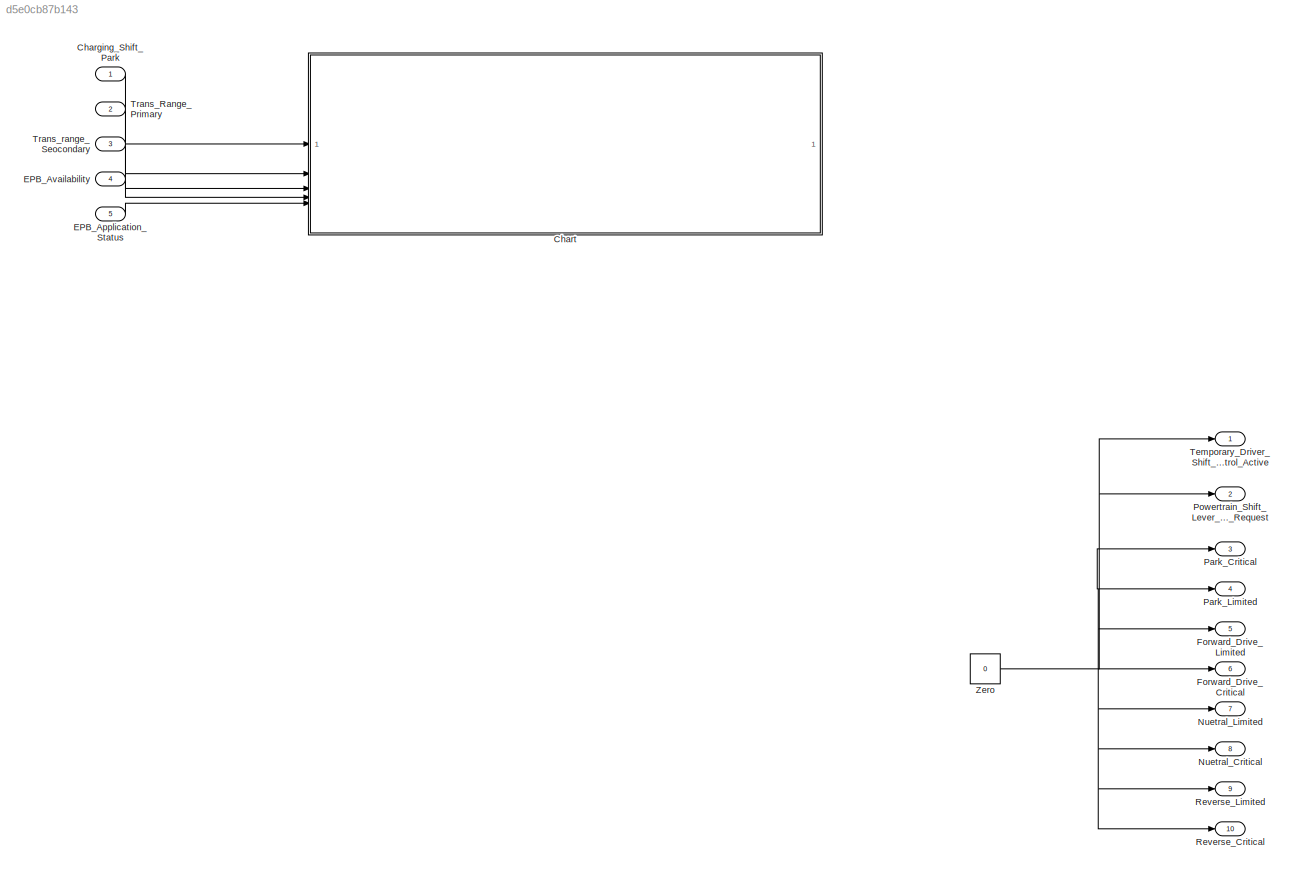
MODEL slx_d5e0cb87b143
KIND model
CONFIG AbsTol = auto
CONFIG EnableMultiTasking = off
CONFIG FixedStep = auto
CONFIG MaxStep = auto
CONFIG MinStep = auto
CONFIG RelTol = 1e-3
CONFIG SampleTimeConstraint = Unconstrained
CONFIG SolverName = VariableStepAuto
CONFIG StartTime = 0.0
CONFIG StopTime = 10.0
BLOCK [Inport] Charging_Shift_Park
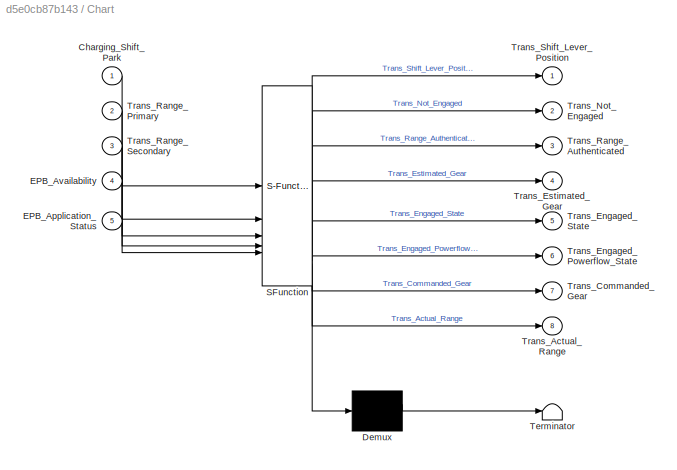
BLOCK [SubSystem] Chart
  ErrorFcn = Stateflow.Translate.translate
  PermitHierarchicalResolution = ExplicitOnly
  SFBlockType = Chart
  TreatAsAtomicUnit = on
BLOCK [Demux] Chart/ Demux 
  Outputs = 1
BLOCK [S-Function] Chart/ SFunction 
  EnableBusSupport = on
  FunctionName = sf_sfun
  PortCounts = [5 9]
  SFcnIsStateOwnerBlock = off
  SFunctionDeploymentMode = off
  Tag = Stateflow S-Function 3
BLOCK [Terminator] Chart/ Terminator 
BLOCK [Inport] Chart/Charging_Shift_Park
BLOCK [Inport] Chart/EPB_Application_Status
  Port = 5
BLOCK [Inport] Chart/EPB_Availability
  Port = 4
BLOCK [Outport] Chart/Trans_Actual_Range
  Port = 8
BLOCK [Outport] Chart/Trans_Commanded_Gear
  Port = 7
BLOCK [Outport] Chart/Trans_Engaged_Powerflow_State
  Port = 6
BLOCK [Outport] Chart/Trans_Engaged_State
  Port = 5
BLOCK [Outport] Chart/Trans_Estimated_Gear
  Port = 4
BLOCK [Outport] Chart/Trans_Not_Engaged
  Port = 2
BLOCK [Outport] Chart/Trans_Range_Authenticated
  Port = 3
BLOCK [Inport] Chart/Trans_Range_Primary
  Port = 2
BLOCK [Inport] Chart/Trans_Range_Secondary
  Port = 3
BLOCK [Outport] Chart/Trans_Shift_Lever_Position
BLOCK [Inport] EPB_Application_Status
  Port = 5
BLOCK [Inport] EPB_Availability
  Port = 4
BLOCK [Outport] Forward_Drive_Critical
  Port = 6
BLOCK [Outport] Forward_Drive_Limited
  Port = 5
BLOCK [Outport] Nuetral_Critical
  Port = 8
BLOCK [Outport] Nuetral_Limited
  Port = 7
BLOCK [Outport] Park_Critical
  Port = 3
BLOCK [Outport] Park_Limited
  Port = 4
BLOCK [Outport] Powertrain_Shift_Lever_Lock_Request
  Port = 2
BLOCK [Outport] Reverse_Critical
  Port = 10
BLOCK [Outport] Reverse_Limited
  Port = 9
BLOCK [Outport] Temporary_Driver_Shift_Control_Active
BLOCK [Inport] Trans_Range_Primary
  Port = 2
BLOCK [Inport] Trans_range_Seocondary
  Port = 3
BLOCK [Constant] Zero
  OutDataTypeStr = Inherit: Inherit via back propagation
  Value = 0
LINE Charging_Shift_Park:1 -> Chart:1
LINE EPB_Application_Status:1 -> Chart:5
LINE EPB_Availability:1 -> Chart:4
LINE Trans_Range_Primary:1 -> Chart:2
LINE Trans_range_Seocondary:1 -> Chart:3
NET Zero:1 -> Forward_Drive_Critical:1, Forward_Drive_Limited:1, Nuetral_Critical:1, Nuetral_Limited:1, Park_Critical:1, Park_Limited:1, Powertrain_Shift_Lever_Lock_Request:1, Reverse_Critical:1, Reverse_Limited:1, Temporary_Driver_Shift_Control_Active:1
note: NET lines group one-source signal fan-out (src -> all destinations, sorted); 1:1 wires keep LINE
CHART Chart states=4 transitions=19
  STATE_LABEL 'Nuetral\nentry:\nTrans_Actual_Range == Nuetral_Position;\nTrans_Range_Authenticated == Nuetral;\nTrans_Shift_Lever_Position == Nuetral_Range;\nTrans_Estimated_Gear == Nuetral_Gear;\nTrans_Commanded_Gear == Nuetral_Gear;\nTrans_Engaged_State == Trans_Not_Engaged;\nTrans_Engaged_Powerflow_State == No_Powerflow;\n'
  STATE_LABEL 'Park\nentry:\nTrans_Range_Authenticated == Park;\nTrans_Shift_Lever_Position == Park_Range;\nTrans_Estimated_Gear == Park_Gear;\nTrans_Commanded_Gear == Park_Gear;\nTrans_Engaged_State == Trans_Not_Engaged;\nTrans_Engaged_Powerflow_State == No_Powerflow;\n'
  STATE_LABEL '% Actual_Range'
  STATE_LABEL '[EPB_Application_Status == Engaged]'
  STATE_LABEL '{Trans_Actual_Range == Nuetral_Position}'
  STATE_LABEL '{Trans_Actual_Range == Park_Position}'
  STATE_LABEL 'Drive\nentry:\nTrans_Actual_Range == First_Drive_Position;\nTrans_Range_Authenticated == Drive;\nTrans_Shift_Lever_Position == Forward_Range;\nTrans_Estimated_Gear == CVT_Forward_Gear;\nTrans_Commanded_Gear == CVT_Forward_Gear;\nTrans_Engaged_State == Trans_Engaged_Forward;\nTrans_Engaged_Powerflow_State == Forward_Engaged;\n'
  STATE_LABEL 'Reverse\nentry:\nTrans_Actual_Range == Reverse_Position;\nTrans_Range_Authenticated == Reverse;\nTrans_Shift_Lever_Position == Reverse_Range;\nTrans_Estimated_Gear == Reverse_Gear;\nTrans_Commanded_Gear == Reverse_Gear;\nTrans_Engaged_State == Trans_Engaged_Reverse;\nTrans_Engaged_Powerflow_State == Reverse_Engaged;\n'
CHART  states=0 transitions=0
